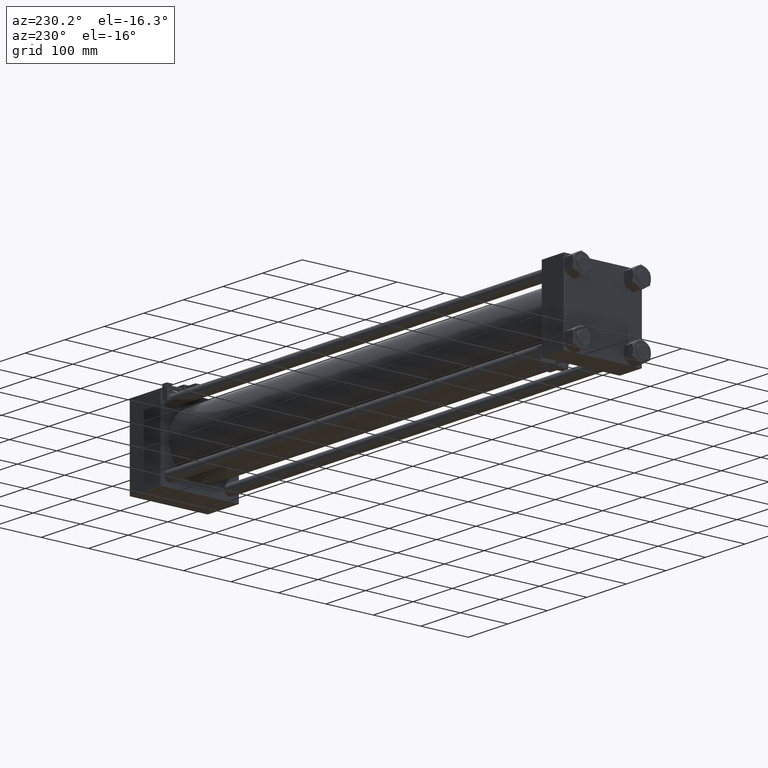
[diagram: clean part render]
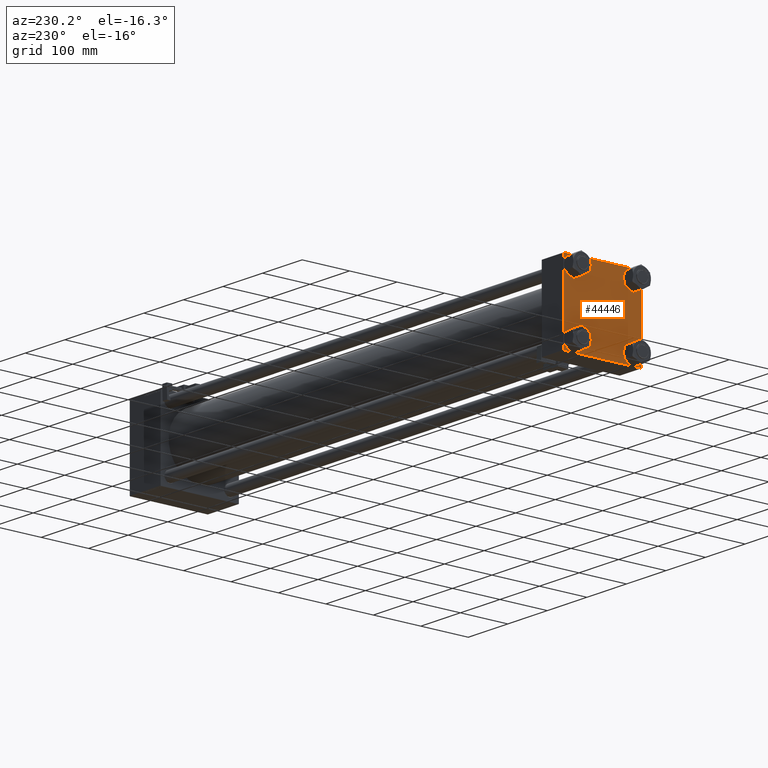
[diagram: same view with one face highlighted and labeled with its STEP entity id]
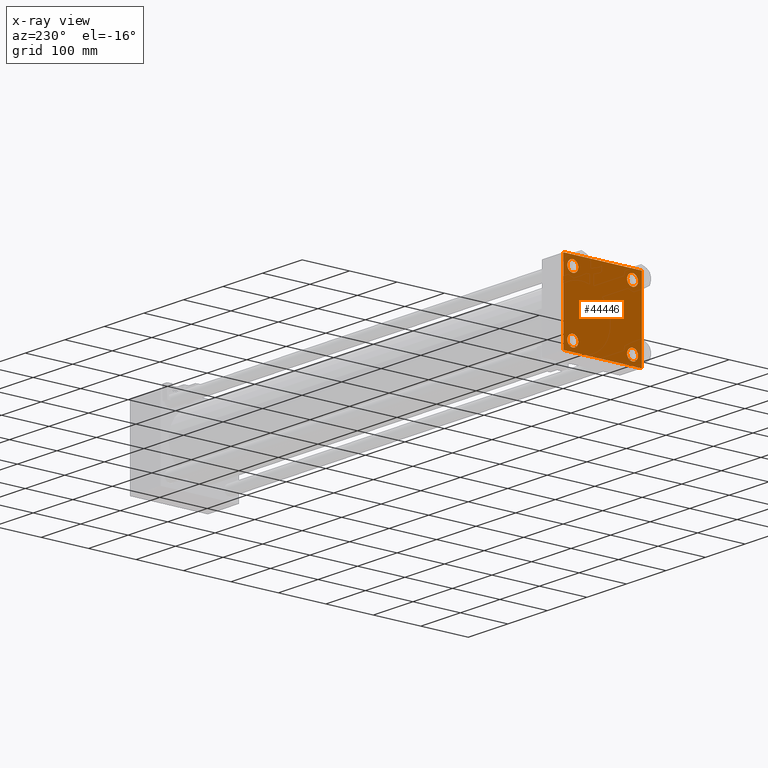
[diagram: x-ray of the same camera — body ghosted, the highlighted face saturated]
A machine part, auxiliary view. The second image highlights one B-rep face of the part: STEP entity #44446.
The next image is the same camera in x-ray: the body ghosted, the highlighted face saturated — about 0% of this face is hidden behind the body in this view.
In plain terms, the highlighted planar face has unit normal (-1, 0, 0).
Its self-contained STEP definition (entity closure, byte-faithful):
#501 = CARTESIAN_POINT ( 'NONE',  ( 0.000000000000000000, 82.50000000000002842, 82.00000000000005684 ) ) ;
#652 = DIRECTION ( 'NONE',  ( 1.000000000000000000, -0.000000000000000000, -0.000000000000000000 ) ) ;
#762 = EDGE_CURVE ( 'NONE', #34991, #51908, #14555, .T. ) ;
#1425 = CARTESIAN_POINT ( 'NONE',  ( 0.000000000000000000, 62.95000000000000284, 51.44999999999999574 ) ) ;
#2035 = CARTESIAN_POINT ( 'NONE',  ( 0.000000000000000000, 62.95000000000000284, -62.95000000000000284 ) ) ;
#2110 = ORIENTED_EDGE ( 'NONE', *, *, #12421, .F. ) ;
#2395 = EDGE_CURVE ( 'NONE', #51908, #34991, #18020, .T. ) ;
#2640 = CIRCLE ( 'NONE', #49646, 11.50000000000001066 ) ;
#2756 = AXIS2_PLACEMENT_3D ( 'NONE', #2035, #50769, #14083 ) ;
#3071 = CIRCLE ( 'NONE', #48390, 11.50000000000001066 ) ;
#3196 = DIRECTION ( 'NONE',  ( 0.000000000000000000, 0.000000000000000000, 1.000000000000000000 ) ) ;
#4980 = EDGE_CURVE ( 'NONE', #33607, #22509, #46340, .T. ) ;
#5527 = VECTOR ( 'NONE', #6102, 1000.000000000000114 ) ;
#6102 = DIRECTION ( 'NONE',  ( -0.000000000000000000, 0.7071067811865474617, 0.7071067811865474617 ) ) ;
#6423 = ORIENTED_EDGE ( 'NONE', *, *, #2395, .T. ) ;
#6683 = CARTESIAN_POINT ( 'NONE',  ( 0.000000000000000000, -82.49999999999997158, 82.50000000000001421 ) ) ;
#6785 = VECTOR ( 'NONE', #34253, 999.9999999999998863 ) ;
#7128 = VERTEX_POINT ( 'NONE', #9356 ) ;
#7274 = CARTESIAN_POINT ( 'NONE',  ( 0.000000000000000000, -62.94999999999998153, -74.45000000000003126 ) ) ;
#7341 = VERTEX_POINT ( 'NONE', #42230 ) ;
#7512 = CARTESIAN_POINT ( 'NONE',  ( 0.000000000000000000, 82.00000000000005684, 82.50000000000002842 ) ) ;
#7856 = ORIENTED_EDGE ( 'NONE', *, *, #40881, .T. ) ;
#8065 = EDGE_CURVE ( 'NONE', #7128, #45085, #43029, .T. ) ;
#8441 = CARTESIAN_POINT ( 'NONE',  ( 0.000000000000000000, 82.00000000000005684, -82.49999999999997158 ) ) ;
#8732 = CARTESIAN_POINT ( 'NONE',  ( 0.000000000000000000, 82.25000000000001421, -82.25000000000001421 ) ) ;
#9356 = CARTESIAN_POINT ( 'NONE',  ( 0.000000000000000000, -62.94999999999998153, -51.45000000000000995 ) ) ;
#10194 = CARTESIAN_POINT ( 'NONE',  ( 0.000000000000000000, -62.94999999999998153, 51.45000000000000995 ) ) ;
#11457 = EDGE_CURVE ( 'NONE', #12414, #35477, #37718, .T. ) ;
#11517 = EDGE_CURVE ( 'NONE', #39425, #28423, #26208, .T. ) ;
#11981 = CARTESIAN_POINT ( 'NONE',  ( 0.000000000000000000, -82.50000000000000000, -81.99999999999998579 ) ) ;
#12214 = DIRECTION ( 'NONE',  ( -0.000000000000000000, -0.7071067811865474617, -0.7071067811865474617 ) ) ;
#12414 = VERTEX_POINT ( 'NONE', #7512 ) ;
#12421 = EDGE_CURVE ( 'NONE', #12414, #28423, #40171, .T. ) ;
#13398 = DIRECTION ( 'NONE',  ( 0.000000000000000000, 0.000000000000000000, 1.000000000000000000 ) ) ;
#13826 = DIRECTION ( 'NONE',  ( 0.000000000000000000, 0.000000000000000000, 1.000000000000000000 ) ) ;
#14083 = DIRECTION ( 'NONE',  ( 0.000000000000000000, 0.000000000000000000, 1.000000000000000000 ) ) ;
#14369 = DIRECTION ( 'NONE',  ( 1.000000000000000000, -0.000000000000000000, -0.000000000000000000 ) ) ;
#14555 = CIRCLE ( 'NONE', #36786, 11.50000000000001066 ) ;
#15231 = ORIENTED_EDGE ( 'NONE', *, *, #11517, .T. ) ;
#15275 = EDGE_CURVE ( 'NONE', #22509, #33607, #48435, .T. ) ;
#15825 = EDGE_CURVE ( 'NONE', #50763, #47535, #16924, .T. ) ;
#16282 = EDGE_CURVE ( 'NONE', #45085, #7128, #2640, .T. ) ;
#16691 = EDGE_LOOP ( 'NONE', ( #19205, #6423 ) ) ;
#16924 = LINE ( 'NONE', #24434, #44158 ) ;
#18020 = CIRCLE ( 'NONE', #42787, 11.50000000000001066 ) ;
#18446 = PLANE ( 'NONE',  #42690 ) ;
#18496 = ORIENTED_EDGE ( 'NONE', *, *, #39362, .T. ) ;
#18976 = LINE ( 'NONE', #51664, #6785 ) ;
#18999 = DIRECTION ( 'NONE',  ( 0.000000000000000000, -1.682156097916903588E-16, -1.000000000000000000 ) ) ;
#19205 = ORIENTED_EDGE ( 'NONE', *, *, #762, .T. ) ;
#19814 = VERTEX_POINT ( 'NONE', #11981 ) ;
#19874 = ORIENTED_EDGE ( 'NONE', *, *, #16282, .T. ) ;
#19909 = AXIS2_PLACEMENT_3D ( 'NONE', #37605, #33595, #30633 ) ;
#20384 = ORIENTED_EDGE ( 'NONE', *, *, #28799, .F. ) ;
#21126 = ORIENTED_EDGE ( 'NONE', *, *, #52686, .T. ) ;
#21127 = CARTESIAN_POINT ( 'NONE',  ( 0.000000000000000000, 82.25000000000002842, 82.25000000000002842 ) ) ;
#21684 = CARTESIAN_POINT ( 'NONE',  ( 0.000000000000000000, -62.94999999999998153, -62.95000000000001705 ) ) ;
#21697 = DIRECTION ( 'NONE',  ( 1.000000000000000000, -0.000000000000000000, -0.000000000000000000 ) ) ;
#21987 = EDGE_LOOP ( 'NONE', ( #38668, #48000 ) ) ;
#22475 = FACE_BOUND ( 'NONE', #40215, .T. ) ;
#22509 = VERTEX_POINT ( 'NONE', #32388 ) ;
#22734 = CARTESIAN_POINT ( 'NONE',  ( 0.000000000000000000, -82.00000000000000000, -82.50000000000000000 ) ) ;
#23053 = CARTESIAN_POINT ( 'NONE',  ( 0.000000000000000000, -62.94999999999998153, 62.95000000000001705 ) ) ;
#24223 = AXIS2_PLACEMENT_3D ( 'NONE', #21684, #14369, #43281 ) ;
#24256 = VERTEX_POINT ( 'NONE', #24906 ) ;
#24434 = CARTESIAN_POINT ( 'NONE',  ( 0.000000000000000000, 82.50000000000002842, -82.49999999999997158 ) ) ;
#24906 = CARTESIAN_POINT ( 'NONE',  ( 0.000000000000000000, 82.50000000000002842, -82.00000000000000000 ) ) ;
#25429 = FACE_BOUND ( 'NONE', #34877, .T. ) ;
#26208 = LINE ( 'NONE', #34498, #5527 ) ;
#27065 = AXIS2_PLACEMENT_3D ( 'NONE', #30432, #33914, #13826 ) ;
#27864 = DIRECTION ( 'NONE',  ( 0.000000000000000000, -1.000000000000000000, -8.410780489584519171E-17 ) ) ;
#28423 = VERTEX_POINT ( 'NONE', #39691 ) ;
#28799 = EDGE_CURVE ( 'NONE', #39425, #19814, #46854, .T. ) ;
#28926 = CARTESIAN_POINT ( 'NONE',  ( 0.000000000000000000, 62.95000000000000284, 62.95000000000000284 ) ) ;
#29444 = FACE_BOUND ( 'NONE', #16691, .T. ) ;
#30432 = CARTESIAN_POINT ( 'NONE',  ( 0.000000000000000000, 62.95000000000000284, -62.95000000000000284 ) ) ;
#30633 = DIRECTION ( 'NONE',  ( 0.000000000000000000, 0.000000000000000000, 1.000000000000000000 ) ) ;
#30740 = EDGE_CURVE ( 'NONE', #34958, #7341, #3071, .T. ) ;
#31043 = DIRECTION ( 'NONE',  ( -1.000000000000000000, 0.000000000000000000, 0.000000000000000000 ) ) ;
#31536 = VECTOR ( 'NONE', #39757, 1000.000000000000000 ) ;
#32035 = CARTESIAN_POINT ( 'NONE',  ( 0.000000000000000000, 62.95000000000000284, -51.44999999999999574 ) ) ;
#32230 = CARTESIAN_POINT ( 'NONE',  ( 0.000000000000000000, 82.50000000000002842, 82.50000000000002842 ) ) ;
#32388 = CARTESIAN_POINT ( 'NONE',  ( 0.000000000000000000, 62.95000000000000284, -74.45000000000001705 ) ) ;
#33177 = DIRECTION ( 'NONE',  ( 0.000000000000000000, 0.7071067811865474617, -0.7071067811865474617 ) ) ;
#33190 = VECTOR ( 'NONE', #12214, 1000.000000000000114 ) ;
#33254 = DIRECTION ( 'NONE',  ( 0.000000000000000000, -1.000000000000000000, -1.682156097916903588E-16 ) ) ;
#33595 = DIRECTION ( 'NONE',  ( 1.000000000000000000, -0.000000000000000000, -0.000000000000000000 ) ) ;
#33607 = VERTEX_POINT ( 'NONE', #32035 ) ;
#33619 = LINE ( 'NONE', #8732, #33190 ) ;
#33914 = DIRECTION ( 'NONE',  ( 1.000000000000000000, -0.000000000000000000, -0.000000000000000000 ) ) ;
#34253 = DIRECTION ( 'NONE',  ( 0.000000000000000000, -0.7071067811865376918, 0.7071067811865574537 ) ) ;
#34498 = CARTESIAN_POINT ( 'NONE',  ( 0.000000000000000000, -82.25000000000000000, 82.25000000000000000 ) ) ;
#34877 = EDGE_LOOP ( 'NONE', ( #42121, #19874 ) ) ;
#34958 = VERTEX_POINT ( 'NONE', #1425 ) ;
#34991 = VERTEX_POINT ( 'NONE', #51473 ) ;
#35477 = VERTEX_POINT ( 'NONE', #501 ) ;
#36204 = EDGE_LOOP ( 'NONE', ( #7856, #36979, #50549, #18496, #20384, #15231, #2110, #39907 ) ) ;
#36786 = AXIS2_PLACEMENT_3D ( 'NONE', #37334, #652, #38124 ) ;
#36979 = ORIENTED_EDGE ( 'NONE', *, *, #40568, .T. ) ;
#37176 = VECTOR ( 'NONE', #33177, 1000.000000000000114 ) ;
#37334 = CARTESIAN_POINT ( 'NONE',  ( 0.000000000000000000, -62.94999999999998153, 62.95000000000001705 ) ) ;
#37605 = CARTESIAN_POINT ( 'NONE',  ( 0.000000000000000000, 62.95000000000000284, 62.95000000000000284 ) ) ;
#37718 = LINE ( 'NONE', #21127, #37176 ) ;
#38124 = DIRECTION ( 'NONE',  ( 0.000000000000000000, 0.000000000000000000, 1.000000000000000000 ) ) ;
#38668 = ORIENTED_EDGE ( 'NONE', *, *, #4980, .T. ) ;
#39362 = EDGE_CURVE ( 'NONE', #47535, #19814, #18976, .T. ) ;
#39425 = VERTEX_POINT ( 'NONE', #44658 ) ;
#39648 = DIRECTION ( 'NONE',  ( 0.000000000000000000, 0.000000000000000000, 1.000000000000000000 ) ) ;
#39691 = CARTESIAN_POINT ( 'NONE',  ( 0.000000000000000000, -81.99999999999997158, 82.50000000000001421 ) ) ;
#39757 = DIRECTION ( 'NONE',  ( 0.000000000000000000, 0.000000000000000000, -1.000000000000000000 ) ) ;
#39907 = ORIENTED_EDGE ( 'NONE', *, *, #11457, .T. ) ;
#40171 = LINE ( 'NONE', #48217, #43054 ) ;
#40215 = EDGE_LOOP ( 'NONE', ( #21126, #42828 ) ) ;
#40568 = EDGE_CURVE ( 'NONE', #24256, #50763, #33619, .T. ) ;
#40881 = EDGE_CURVE ( 'NONE', #35477, #24256, #52594, .T. ) ;
#41766 = FACE_BOUND ( 'NONE', #21987, .T. ) ;
#42121 = ORIENTED_EDGE ( 'NONE', *, *, #8065, .T. ) ;
#42230 = CARTESIAN_POINT ( 'NONE',  ( 0.000000000000000000, 62.95000000000000284, 74.45000000000001705 ) ) ;
#42690 = AXIS2_PLACEMENT_3D ( 'NONE', #51663, #31043, #3196 ) ;
#42787 = AXIS2_PLACEMENT_3D ( 'NONE', #23053, #48925, #39648 ) ;
#42828 = ORIENTED_EDGE ( 'NONE', *, *, #30740, .T. ) ;
#43029 = CIRCLE ( 'NONE', #24223, 11.50000000000001066 ) ;
#43054 = VECTOR ( 'NONE', #27864, 1000.000000000000000 ) ;
#43281 = DIRECTION ( 'NONE',  ( 0.000000000000000000, 0.000000000000000000, 1.000000000000000000 ) ) ;
#43848 = CIRCLE ( 'NONE', #19909, 11.50000000000001066 ) ;
#43887 = FACE_OUTER_BOUND ( 'NONE', #36204, .T. ) ;
#44158 = VECTOR ( 'NONE', #33254, 1000.000000000000000 ) ;
#44194 = CARTESIAN_POINT ( 'NONE',  ( 0.000000000000000000, -62.94999999999998153, -62.95000000000001705 ) ) ;
#44445 = DIRECTION ( 'NONE',  ( 0.000000000000000000, 0.000000000000000000, 1.000000000000000000 ) ) ;
#44446 = ADVANCED_FACE ( 'NONE', ( #29444, #25429, #41766, #22475, #43887 ), #18446, .T. ) ;
#44658 = CARTESIAN_POINT ( 'NONE',  ( 0.000000000000000000, -82.49999999999997158, 82.00000000000001421 ) ) ;
#45085 = VERTEX_POINT ( 'NONE', #7274 ) ;
#46340 = CIRCLE ( 'NONE', #2756, 11.50000000000001066 ) ;
#46854 = LINE ( 'NONE', #6683, #47439 ) ;
#47439 = VECTOR ( 'NONE', #18999, 1000.000000000000000 ) ;
#47535 = VERTEX_POINT ( 'NONE', #22734 ) ;
#48000 = ORIENTED_EDGE ( 'NONE', *, *, #15275, .T. ) ;
#48217 = CARTESIAN_POINT ( 'NONE',  ( 0.000000000000000000, 82.50000000000002842, 82.50000000000002842 ) ) ;
#48390 = AXIS2_PLACEMENT_3D ( 'NONE', #28926, #21697, #13398 ) ;
#48435 = CIRCLE ( 'NONE', #27065, 11.50000000000001066 ) ;
#48474 = DIRECTION ( 'NONE',  ( 1.000000000000000000, -0.000000000000000000, -0.000000000000000000 ) ) ;
#48925 = DIRECTION ( 'NONE',  ( 1.000000000000000000, -0.000000000000000000, -0.000000000000000000 ) ) ;
#49646 = AXIS2_PLACEMENT_3D ( 'NONE', #44194, #48474, #44445 ) ;
#50549 = ORIENTED_EDGE ( 'NONE', *, *, #15825, .T. ) ;
#50763 = VERTEX_POINT ( 'NONE', #8441 ) ;
#50769 = DIRECTION ( 'NONE',  ( 1.000000000000000000, -0.000000000000000000, -0.000000000000000000 ) ) ;
#51473 = CARTESIAN_POINT ( 'NONE',  ( 0.000000000000000000, -62.94999999999998153, 74.45000000000003126 ) ) ;
#51663 = CARTESIAN_POINT ( 'NONE',  ( 0.000000000000000000, 0.000000000000000000, 0.000000000000000000 ) ) ;
#51664 = CARTESIAN_POINT ( 'NONE',  ( 0.000000000000000000, -82.25000000000115108, -82.24999999999886313 ) ) ;
#51908 = VERTEX_POINT ( 'NONE', #10194 ) ;
#52594 = LINE ( 'NONE', #32230, #31536 ) ;
#52686 = EDGE_CURVE ( 'NONE', #7341, #34958, #43848, .T. ) ;